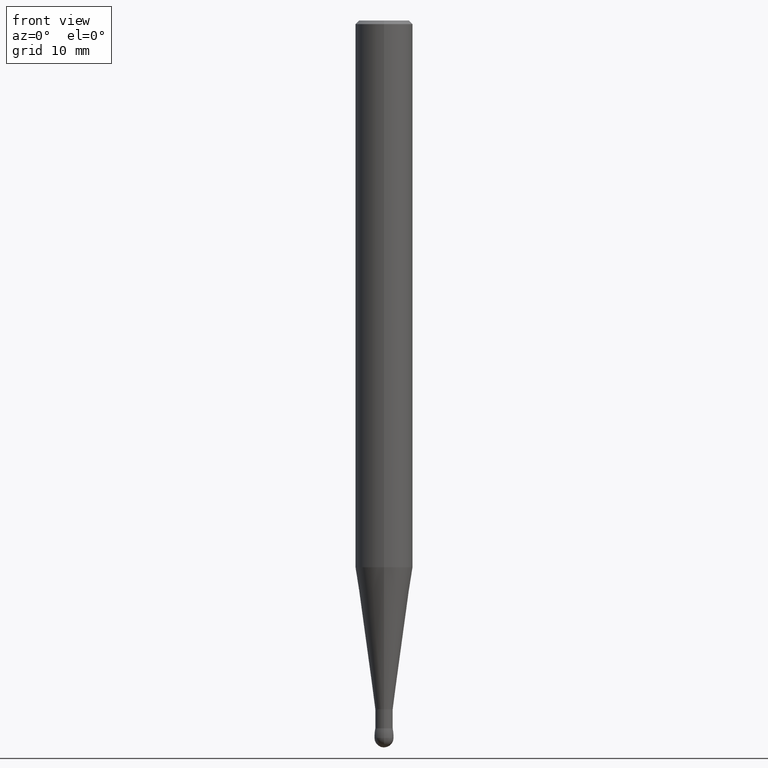
[diagram: clean part render]
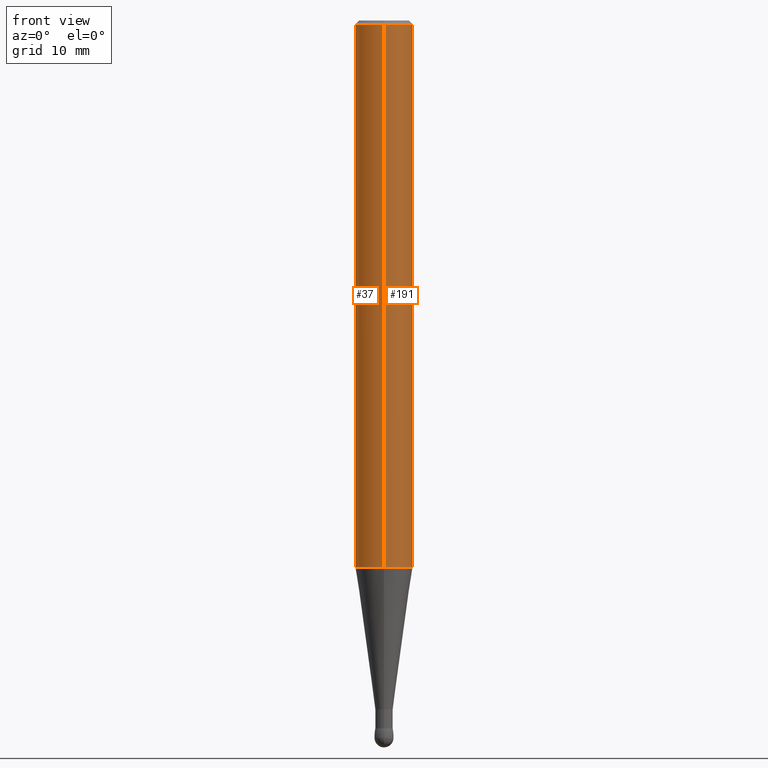
[diagram: same view with one multi-face feature highlighted, each face labeled with its STEP entity id]
A machine part, front view. The highlighted faces form ONE feature: a constant-radius fillet chain: 2 tangent blend faces with common blend radius 2.9997 mm. The faces share edges in the B-rep.
Their STEP definitions:
[1] entity #191 (Cylinder):
#20 = VERTEX_POINT ( 'NONE', #432 ) ;
#35 = AXIS2_PLACEMENT_3D ( 'NONE', #359, #197, #162 ) ;
#54 = DIRECTION ( 'NONE',  ( 2.443734052025374583E-29, -3.493965605535999684E-15, -1.000000000000000000 ) ) ;
#57 = EDGE_CURVE ( 'NONE', #477, #102, #420, .T. ) ;
#63 = CIRCLE ( 'NONE', #260, 0.1180999999999996358 ) ;
#66 = VECTOR ( 'NONE', #392, 39.37007874015748143 ) ;
#84 = LINE ( 'NONE', #274, #66 ) ;
#88 = CARTESIAN_POINT ( 'NONE',  ( 3.665601078037989708E-31, -5.240948408303895322E-17, -0.01499999999999970281 ) ) ;
#102 = VERTEX_POINT ( 'NONE', #407 ) ;
#103 = EDGE_CURVE ( 'NONE', #20, #102, #378, .T. ) ;
#105 = DIRECTION ( 'NONE',  ( 6.982962677686265922E-15, 1.000000000000000000, -4.626330217890383536E-15 ) ) ;
#162 = DIRECTION ( 'NONE',  ( 6.982962677686265922E-15, 1.000000000000000000, -4.626330217890383536E-15 ) ) ;
#173 = ORIENTED_EDGE ( 'NONE', *, *, #247, .F. ) ;
#191 = ADVANCED_FACE ( 'NONE', ( #353 ), #434, .T. ) ;
#194 = CARTESIAN_POINT ( 'NONE',  ( -8.102248135367440766E-16, -0.1181000000000098221, -2.913399999999998879 ) ) ;
#197 = DIRECTION ( 'NONE',  ( 2.443734052025374583E-29, -3.493965605535999684E-15, -1.000000000000000000 ) ) ;
#209 = ORIENTED_EDGE ( 'NONE', *, *, #272, .T. ) ;
#223 = DIRECTION ( 'NONE',  ( 2.443734052025374863E-29, -3.493965605536000078E-15, -1.000000000000000000 ) ) ;
#247 = EDGE_CURVE ( 'NONE', #398, #20, #84, .T. ) ;
#260 = AXIS2_PLACEMENT_3D ( 'NONE', #88, #54, #309 ) ;
#272 = EDGE_CURVE ( 'NONE', #398, #477, #63, .T. ) ;
#274 = CARTESIAN_POINT ( 'NONE',  ( 8.246878922348167949E-16, 0.1180999999999894634, -2.913400000000000212 ) ) ;
#295 = VECTOR ( 'NONE', #223, 39.37007874015748143 ) ;
#309 = DIRECTION ( 'NONE',  ( 6.982962677686265922E-15, 1.000000000000000000, -3.487819265831422394E-15 ) ) ;
#353 = FACE_OUTER_BOUND ( 'NONE', #481, .T. ) ;
#359 = CARTESIAN_POINT ( 'NONE',  ( 7.119574787170725956E-29, -1.017931939516858039E-14, -2.913399999999999768 ) ) ;
#367 = ORIENTED_EDGE ( 'NONE', *, *, #57, .T. ) ;
#376 = CARTESIAN_POINT ( 'NONE',  ( 5.499447891508879330E-29, -7.862918539128323536E-15, -2.250428145792263912 ) ) ;
#378 = CIRCLE ( 'NONE', #445, 0.1180999999999996358 ) ;
#392 = DIRECTION ( 'NONE',  ( 2.443734052025374863E-29, -3.493965605536000078E-15, -1.000000000000000000 ) ) ;
#398 = VERTEX_POINT ( 'NONE', #452 ) ;
#399 = ORIENTED_EDGE ( 'NONE', *, *, #103, .F. ) ;
#407 = CARTESIAN_POINT ( 'NONE',  ( -8.246878922346906758E-16, -0.1181000000000075323, -2.250428145792263468 ) ) ;
#418 = CARTESIAN_POINT ( 'NONE',  ( -8.102248135368149755E-16, -0.1180999999999996913, -0.01499999999999929168 ) ) ;
#420 = LINE ( 'NONE', #194, #295 ) ;
#432 = CARTESIAN_POINT ( 'NONE',  ( 8.391509709327303605E-16, 0.1180999999999917532, -2.250428145792263912 ) ) ;
#434 = CYLINDRICAL_SURFACE ( 'NONE', #35, 0.1180999999999996358 ) ;
#445 = AXIS2_PLACEMENT_3D ( 'NONE', #376, #449, #105 ) ;
#449 = DIRECTION ( 'NONE',  ( 2.443734052025374583E-29, -3.493965605535999684E-15, -1.000000000000000000 ) ) ;
#452 = CARTESIAN_POINT ( 'NONE',  ( 8.246878922347458960E-16, 0.1180999999999995942, -0.01500000000000011567 ) ) ;
#477 = VERTEX_POINT ( 'NONE', #418 ) ;
#481 = EDGE_LOOP ( 'NONE', ( #209, #367, #399, #173 ) ) ;
[2] entity #37 (Cylinder):
#3 = ORIENTED_EDGE ( 'NONE', *, *, #247, .T. ) ;
#20 = VERTEX_POINT ( 'NONE', #432 ) ;
#37 = ADVANCED_FACE ( 'NONE', ( #112 ), #41, .T. ) ;
#41 = CYLINDRICAL_SURFACE ( 'NONE', #251, 0.1180999999999996358 ) ;
#47 = CARTESIAN_POINT ( 'NONE',  ( 3.665601078037989708E-31, -5.240948408303895322E-17, -0.01499999999999970281 ) ) ;
#50 = DIRECTION ( 'NONE',  ( 6.982962677686265922E-15, 1.000000000000000000, -4.626330217890383536E-15 ) ) ;
#57 = EDGE_CURVE ( 'NONE', #477, #102, #420, .T. ) ;
#66 = VECTOR ( 'NONE', #392, 39.37007874015748143 ) ;
#71 = AXIS2_PLACEMENT_3D ( 'NONE', #47, #355, #312 ) ;
#76 = CARTESIAN_POINT ( 'NONE',  ( 7.119574787170725956E-29, -1.017931939516858039E-14, -2.913399999999999768 ) ) ;
#84 = LINE ( 'NONE', #274, #66 ) ;
#101 = ORIENTED_EDGE ( 'NONE', *, *, #132, .T. ) ;
#102 = VERTEX_POINT ( 'NONE', #407 ) ;
#112 = FACE_OUTER_BOUND ( 'NONE', #408, .T. ) ;
#132 = EDGE_CURVE ( 'NONE', #477, #398, #456, .T. ) ;
#138 = EDGE_CURVE ( 'NONE', #102, #20, #433, .T. ) ;
#142 = AXIS2_PLACEMENT_3D ( 'NONE', #240, #304, #50 ) ;
#194 = CARTESIAN_POINT ( 'NONE',  ( -8.102248135367440766E-16, -0.1181000000000098221, -2.913399999999998879 ) ) ;
#199 = DIRECTION ( 'NONE',  ( 6.982962677686265922E-15, 1.000000000000000000, -4.626330217890383536E-15 ) ) ;
#207 = ORIENTED_EDGE ( 'NONE', *, *, #138, .F. ) ;
#223 = DIRECTION ( 'NONE',  ( 2.443734052025374863E-29, -3.493965605536000078E-15, -1.000000000000000000 ) ) ;
#240 = CARTESIAN_POINT ( 'NONE',  ( 5.499447891508879330E-29, -7.862918539128323536E-15, -2.250428145792263912 ) ) ;
#247 = EDGE_CURVE ( 'NONE', #398, #20, #84, .T. ) ;
#251 = AXIS2_PLACEMENT_3D ( 'NONE', #76, #387, #199 ) ;
#274 = CARTESIAN_POINT ( 'NONE',  ( 8.246878922348167949E-16, 0.1180999999999894634, -2.913400000000000212 ) ) ;
#295 = VECTOR ( 'NONE', #223, 39.37007874015748143 ) ;
#304 = DIRECTION ( 'NONE',  ( 2.443734052025374583E-29, -3.493965605535999684E-15, -1.000000000000000000 ) ) ;
#312 = DIRECTION ( 'NONE',  ( 6.982962677686265922E-15, 1.000000000000000000, -3.487819265831422394E-15 ) ) ;
#329 = ORIENTED_EDGE ( 'NONE', *, *, #57, .F. ) ;
#355 = DIRECTION ( 'NONE',  ( 2.443734052025374583E-29, -3.493965605535999684E-15, -1.000000000000000000 ) ) ;
#387 = DIRECTION ( 'NONE',  ( 2.443734052025374583E-29, -3.493965605535999684E-15, -1.000000000000000000 ) ) ;
#392 = DIRECTION ( 'NONE',  ( 2.443734052025374863E-29, -3.493965605536000078E-15, -1.000000000000000000 ) ) ;
#398 = VERTEX_POINT ( 'NONE', #452 ) ;
#407 = CARTESIAN_POINT ( 'NONE',  ( -8.246878922346906758E-16, -0.1181000000000075323, -2.250428145792263468 ) ) ;
#408 = EDGE_LOOP ( 'NONE', ( #329, #101, #3, #207 ) ) ;
#418 = CARTESIAN_POINT ( 'NONE',  ( -8.102248135368149755E-16, -0.1180999999999996913, -0.01499999999999929168 ) ) ;
#420 = LINE ( 'NONE', #194, #295 ) ;
#432 = CARTESIAN_POINT ( 'NONE',  ( 8.391509709327303605E-16, 0.1180999999999917532, -2.250428145792263912 ) ) ;
#433 = CIRCLE ( 'NONE', #142, 0.1180999999999996358 ) ;
#452 = CARTESIAN_POINT ( 'NONE',  ( 8.246878922347458960E-16, 0.1180999999999995942, -0.01500000000000011567 ) ) ;
#456 = CIRCLE ( 'NONE', #71, 0.1180999999999996358 ) ;
#477 = VERTEX_POINT ( 'NONE', #418 ) ;